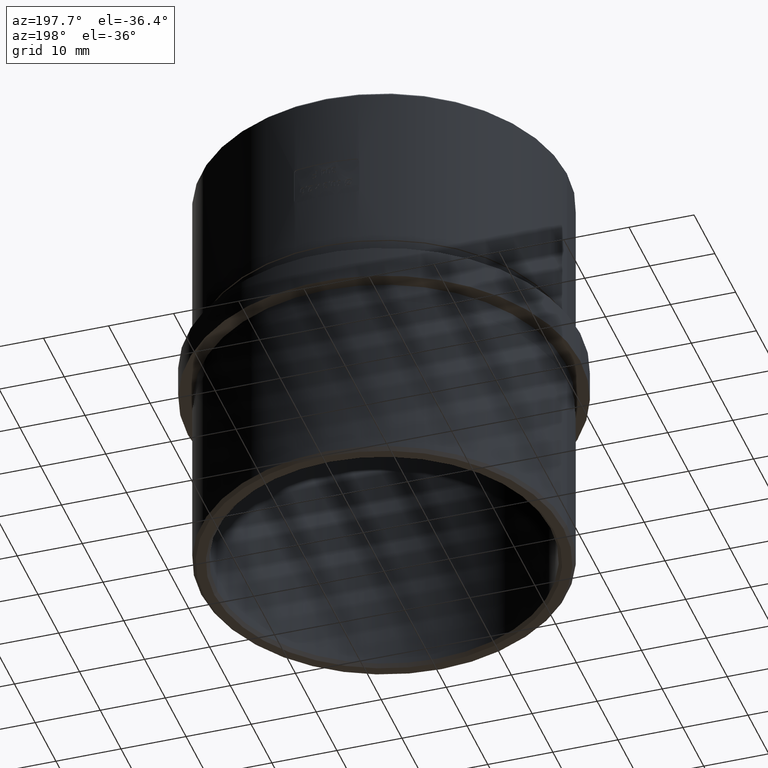
[diagram: clean part render]
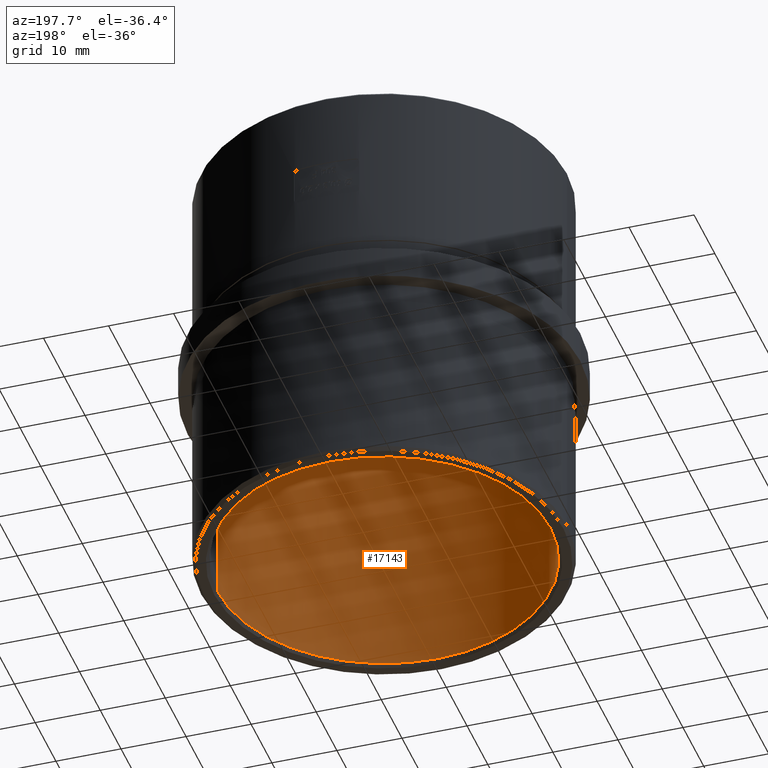
[diagram: same view with one face highlighted and labeled with its STEP entity id]
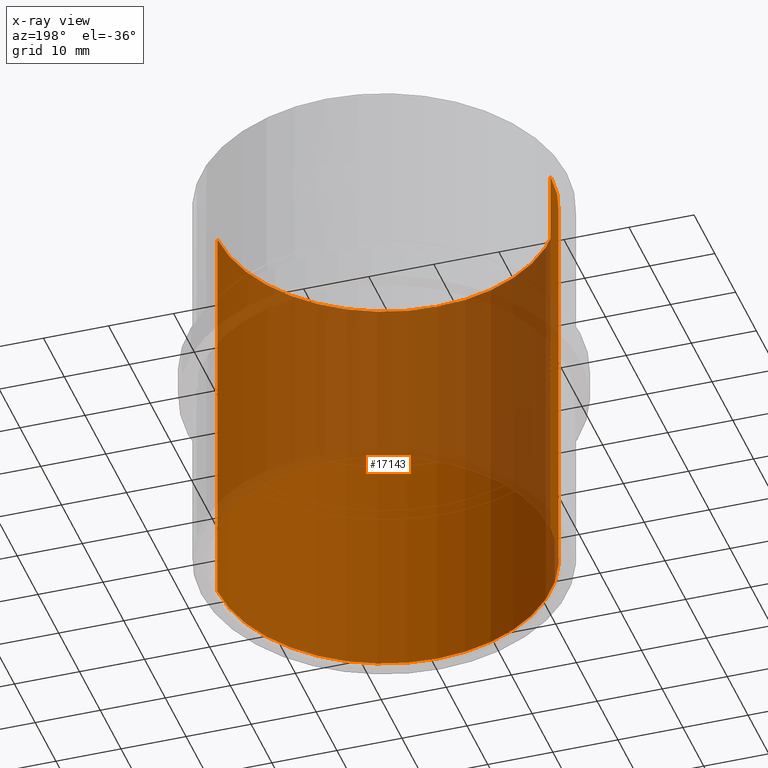
[diagram: x-ray of the same camera — body ghosted, the highlighted face saturated]
A machine part, auxiliary view. The second image highlights one B-rep face of the part: STEP entity #17143.
The next image is the same camera in x-ray: the body ghosted, the highlighted face saturated — about 51% of this face is hidden behind the body in this view.
In plain terms, the highlighted cylindrical surface (partial cylindrical patch) has radius 25.6 mm, axis along (-0, -0, 1).
Its self-contained STEP definition (entity closure, byte-faithful):
#1 = VERTEX_POINT ( 'NONE', #4099 ) ;
#63 = CARTESIAN_POINT ( 'NONE',  ( 25.60000000000000100, 0.0000000000000000000, 0.0000000000000000000 ) ) ;
#76 = VECTOR ( 'NONE', #12829, 1000.000000000000000 ) ;
#85 = EDGE_CURVE ( 'NONE', #13048, #3799, #10429, .T. ) ;
#141 = CARTESIAN_POINT ( 'NONE',  ( 25.60000000000000100, 0.0000000000000000000, -31.99999999999998600 ) ) ;
#301 = CARTESIAN_POINT ( 'NONE',  ( -25.59997876925097100, -0.03298322617123955500, -2.803659879995309200 ) ) ;
#328 = VECTOR ( 'NONE', #9872, 1000.000000000000000 ) ;
#340 = VECTOR ( 'NONE', #2253, 1000.000000000000000 ) ;
#369 = CARTESIAN_POINT ( 'NONE',  ( -25.60000000000000100, 3.135095805817224400E-015, 0.0000000000000000000 ) ) ;
#376 = LINE ( 'NONE', #12094, #6614 ) ;
#383 = DIRECTION ( 'NONE',  ( -0.0000000000000000000, -0.0000000000000000000, 1.000000000000000000 ) ) ;
#481 = EDGE_CURVE ( 'NONE', #9756, #6481, #1610, .T. ) ;
#584 = EDGE_CURVE ( 'NONE', #4494, #11397, #6384, .T. ) ;
#585 = LINE ( 'NONE', #1608, #7325 ) ;
#733 = AXIS2_PLACEMENT_3D ( 'NONE', #4233, #19344, #19265 ) ;
#755 = CARTESIAN_POINT ( 'NONE',  ( -25.60000000000000100, -1.185406834908324800E-017, 0.0000000000000000000 ) ) ;
#766 = ORIENTED_EDGE ( 'NONE', *, *, #11993, .F. ) ;
#812 = CARTESIAN_POINT ( 'NONE',  ( -25.60000000000000100, 3.135095805817224400E-015, 0.0000000000000000000 ) ) ;
#971 = CARTESIAN_POINT ( 'NONE',  ( -25.60000000000000100, -1.142880346631470200E-017, 0.0000000000000000000 ) ) ;
#997 = CARTESIAN_POINT ( 'NONE',  ( -25.59997752674439300, -0.03392094017094018200, -4.894420656383544200 ) ) ;
#1040 = ORIENTED_EDGE ( 'NONE', *, *, #14594, .F. ) ;
#1064 = VECTOR ( 'NONE', #17656, 1000.000000000000000 ) ;
#1118 = EDGE_CURVE ( 'NONE', #12737, #6722, #21166, .T. ) ;
#1158 = CARTESIAN_POINT ( 'NONE',  ( -25.60000000000000100, 3.135095805817224400E-015, 0.0000000000000000000 ) ) ;
#1179 = VERTEX_POINT ( 'NONE', #4955 ) ;
#1253 = CARTESIAN_POINT ( 'NONE',  ( -25.60000000000000100, -9.682640084037789900E-018, 6.775707799145304300 ) ) ;
#1265 = CARTESIAN_POINT ( 'NONE',  ( -25.59999999999999800, -4.166538126884958300E-013, -8.397296406759272400 ) ) ;
#1304 = DIRECTION ( 'NONE',  ( 0.0000000000000000000, 0.0000000000000000000, -1.000000000000000000 ) ) ;
#1321 = B_SPLINE_CURVE_WITH_KNOTS ( 'NONE', 3,
 ( #16476, #14777, #13328, #4900 ),
 .UNSPECIFIED., .F., .F.,
 ( 4, 4 ),
 ( 0.0000000000000000000, 0.0001651754960804326100 ),
 .UNSPECIFIED. ) ;
#1347 = LINE ( 'NONE', #17585, #9124 ) ;
#1415 = VERTEX_POINT ( 'NONE', #4363 ) ;
#1499 = VECTOR ( 'NONE', #12428, 1000.000000000000000 ) ;
#1517 = CARTESIAN_POINT ( 'NONE',  ( -25.59997752674439300, -0.03392094017094018200, -3.903028178418797500 ) ) ;
#1541 = CARTESIAN_POINT ( 'NONE',  ( -25.59999999999999100, -2.914814013256234100E-013, 5.896279188368306600 ) ) ;
#1608 = CARTESIAN_POINT ( 'NONE',  ( -25.60000000000000100, 3.135095805817224400E-015, 0.0000000000000000000 ) ) ;
#1610 = LINE ( 'NONE', #6162, #13828 ) ;
#1638 = CARTESIAN_POINT ( 'NONE',  ( -25.60000000000000100, -1.142880346631470200E-017, 1.433159722222228800 ) ) ;
#1723 = VERTEX_POINT ( 'NONE', #8603 ) ;
#1825 = ORIENTED_EDGE ( 'NONE', *, *, #6429, .F. ) ;
#1841 = LINE ( 'NONE', #369, #2605 ) ;
#1848 = EDGE_CURVE ( 'NONE', #7158, #8515, #17993, .T. ) ;
#1885 = VECTOR ( 'NONE', #2393, 1000.000000000000000 ) ;
#2064 = LINE ( 'NONE', #18703, #18734 ) ;
#2142 = CARTESIAN_POINT ( 'NONE',  ( -25.59999999999999800, -3.167774050206627000E-013, -3.020587320501871600 ) ) ;
#2145 = DIRECTION ( 'NONE',  ( -0.0000000000000000000, -0.0000000000000000000, 1.000000000000000000 ) ) ;
#2147 = VECTOR ( 'NONE', #11368, 1000.000000000000000 ) ;
#2161 = CARTESIAN_POINT ( 'NONE',  ( -25.60000000000000500, -2.914625548425470500E-013, 2.928196923411044300 ) ) ;
#2217 = CARTESIAN_POINT ( 'NONE',  ( -25.59999999999999800, -9.631294005873428800E-015, -0.9890523481114584800 ) ) ;
#2252 = CARTESIAN_POINT ( 'NONE',  ( -25.60000000000000100, -9.824395044960635000E-018, 0.0000000000000000000 ) ) ;
#2253 = DIRECTION ( 'NONE',  ( -0.0000000000000000000, -0.0000000000000000000, 1.000000000000000000 ) ) ;
#2271 = CARTESIAN_POINT ( 'NONE',  ( -25.60000000000001200, -0.01137892802154374100, 6.125216935366848000 ) ) ;
#2348 = CARTESIAN_POINT ( 'NONE',  ( -25.60000000000000500, -0.02359443812523335700, -0.9294877716558851400 ) ) ;
#2351 = VERTEX_POINT ( 'NONE', #6669 ) ;
#2356 = LINE ( 'NONE', #16176, #20630 ) ;
#2393 = DIRECTION ( 'NONE',  ( 0.0000000000000000000, 0.0000000000000000000, -1.000000000000000000 ) ) ;
#2420 = CARTESIAN_POINT ( 'NONE',  ( -25.60000000000000100, 3.092305532188637000E-015, -0.6345703059182364900 ) ) ;
#2446 = CARTESIAN_POINT ( 'NONE',  ( -25.59999438168794600, -0.01696047008547009500, 3.066134982638891900 ) ) ;
#2508 = CARTESIAN_POINT ( 'NONE',  ( -25.60000000000000100, 3.135095805817224400E-015, 0.0000000000000000000 ) ) ;
#2536 = CARTESIAN_POINT ( 'NONE',  ( -25.59999999999999100, -8.062059591966430600E-015, -4.071694404207385700 ) ) ;
#2567 = ORIENTED_EDGE ( 'NONE', *, *, #5468, .T. ) ;
#2583 = DIRECTION ( 'NONE',  ( -0.0000000000000000000, -0.0000000000000000000, 1.000000000000000000 ) ) ;
#2605 = VECTOR ( 'NONE', #6910, 1000.000000000000000 ) ;
#2639 = CARTESIAN_POINT ( 'NONE',  ( -25.60000000000000100, -0.01131678626489462600, -3.763982072769923800 ) ) ;
#2659 = VECTOR ( 'NONE', #3267, 1000.000000000000000 ) ;
#2749 = CARTESIAN_POINT ( 'NONE',  ( -25.60000000000000100, 3.135095805817224400E-015, 0.0000000000000000000 ) ) ;
#2783 = B_SPLINE_CURVE_WITH_KNOTS ( 'NONE', 3,
 ( #21527, #11506, #9973, #1541 ),
 .UNSPECIFIED., .F., .F.,
 ( 4, 4 ),
 ( 0.0000000000000000000, 0.0001390969608058355100 ),
 .UNSPECIFIED. ) ;
#2788 = EDGE_CURVE ( 'NONE', #1179, #17491, #12172, .T. ) ;
#2805 = AXIS2_PLACEMENT_3D ( 'NONE', #13209, #3269, #9937 ) ;
#2868 = ORIENTED_EDGE ( 'NONE', *, *, #13446, .F. ) ;
#2900 = VERTEX_POINT ( 'NONE', #4081 ) ;
#2945 = EDGE_CURVE ( 'NONE', #13048, #6722, #20311, .T. ) ;
#3057 = EDGE_CURVE ( 'NONE', #7367, #21152, #13203, .T. ) ;
#3098 = CARTESIAN_POINT ( 'NONE',  ( -25.60000000000000100, 3.135095805817224400E-015, -31.99999999999998600 ) ) ;
#3210 = CARTESIAN_POINT ( 'NONE',  ( -25.60000000000000100, -1.185406834908324800E-017, 1.161792200854704600 ) ) ;
#3219 = VECTOR ( 'NONE', #15283, 1000.000000000000000 ) ;
#3267 = DIRECTION ( 'NONE',  ( -0.0000000000000000000, -0.0000000000000000000, 1.000000000000000000 ) ) ;
#3269 = DIRECTION ( 'NONE',  ( -0.0000000000000000000, -0.0000000000000000000, -1.000000000000000000 ) ) ;
#3324 = CARTESIAN_POINT ( 'NONE',  ( -25.60000000000000100, -1.030120718624658400E-017, 3.807625534188036700 ) ) ;
#3355 = EDGE_CURVE ( 'NONE', #8515, #17442, #8397, .T. ) ;
#3382 = CARTESIAN_POINT ( 'NONE',  ( -25.60000000000000100, -1.185406834908324800E-017, 0.3137686965812003200 ) ) ;
#3408 = LINE ( 'NONE', #16188, #10404 ) ;
#3612 = CARTESIAN_POINT ( 'NONE',  ( -25.59999999999999800, -3.165753876627425500E-013, -8.719305269219821900 ) ) ;
#3664 = EDGE_CURVE ( 'NONE', #20874, #3799, #11380, .T. ) ;
#3674 = VERTEX_POINT ( 'NONE', #3704 ) ;
#3691 = VECTOR ( 'NONE', #18068, 1000.000000000000000 ) ;
#3704 = CARTESIAN_POINT ( 'NONE',  ( -25.60000000000000100, -1.502422474790332800E-017, -7.725494123931619900 ) ) ;
#3742 = CARTESIAN_POINT ( 'NONE',  ( -25.60000000000000100, -1.142880346631470200E-017, 1.551883012820519400 ) ) ;
#3793 = DIRECTION ( 'NONE',  ( -0.0000000000000000000, -0.0000000000000000000, 1.000000000000000000 ) ) ;
#3799 = VERTEX_POINT ( 'NONE', #19977 ) ;
#3853 = B_SPLINE_CURVE_WITH_KNOTS ( 'NONE', 3,
 ( #13705, #20216, #13554, #2142 ),
 .UNSPECIFIED., .F., .F.,
 ( 4, 4 ),
 ( 0.0000000000000000000, 0.0001651754960804336700 ),
 .UNSPECIFIED. ) ;
#3854 = VERTEX_POINT ( 'NONE', #5105 ) ;
#3855 = LINE ( 'NONE', #2749, #11648 ) ;
#3903 = CARTESIAN_POINT ( 'NONE',  ( -25.59999509928368200, -0.01587733696674214700, 3.019651408515239900 ) ) ;
#3990 = EDGE_CURVE ( 'NONE', #12822, #19570, #18436, .T. ) ;
#3993 = VERTEX_POINT ( 'NONE', #10191 ) ;
#4013 = CARTESIAN_POINT ( 'NONE',  ( -25.60000000000000100, 3.121739927105723900E-015, 6.168681701909323900 ) ) ;
#4036 = VECTOR ( 'NONE', #18233, 1000.000000000000000 ) ;
#4081 = CARTESIAN_POINT ( 'NONE',  ( 25.60000000000000100, 0.0000000000000000000, 32.00000000000002800 ) ) ;
#4094 = CARTESIAN_POINT ( 'NONE',  ( -25.60000000000000100, 3.121739927105723900E-015, 6.168681701909323900 ) ) ;
#4099 = CARTESIAN_POINT ( 'NONE',  ( -25.60000000000000100, -9.682640084037789900E-018, 6.894431089743594800 ) ) ;
#4146 = CARTESIAN_POINT ( 'NONE',  ( -25.60000000000000100, -8.896544391647445800E-018, 8.794003739316238500 ) ) ;
#4182 = ORIENTED_EDGE ( 'NONE', *, *, #17750, .T. ) ;
#4229 = B_SPLINE_CURVE_WITH_KNOTS ( 'NONE', 3,
 ( #16628, #13261, #13416, #8463 ),
 .UNSPECIFIED., .F., .F.,
 ( 4, 4 ),
 ( 0.0004303358039483146100, 0.0006014468130668882900 ),
 .UNSPECIFIED. ) ;
#4233 = CARTESIAN_POINT ( 'NONE',  ( 0.0000000000000000000, 0.0000000000000000000, 32.00000000000002800 ) ) ;
#4250 = ORIENTED_EDGE ( 'NONE', *, *, #3355, .F. ) ;
#4259 = ORIENTED_EDGE ( 'NONE', *, *, #18580, .T. ) ;
#4274 = CARTESIAN_POINT ( 'NONE',  ( -25.60000000000000100, 3.135095805817224400E-015, 0.0000000000000000000 ) ) ;
#4363 = CARTESIAN_POINT ( 'NONE',  ( -25.59999999999999800, -4.163700566511656400E-013, -2.698578458041321200 ) ) ;
#4494 = VERTEX_POINT ( 'NONE', #19625 ) ;
#4507 = LINE ( 'NONE', #2252, #13084 ) ;
#4529 = VERTEX_POINT ( 'NONE', #3098 ) ;
#4626 = CARTESIAN_POINT ( 'NONE',  ( -25.60000000000000100, -1.502422474790332800E-017, 0.0000000000000000000 ) ) ;
#4691 = CARTESIAN_POINT ( 'NONE',  ( -25.60000000000000100, 4.188430341916345900E-012, 7.468995267312504200 ) ) ;
#4739 = CARTESIAN_POINT ( 'NONE',  ( -25.59999999999999100, -2.914814013256234100E-013, 5.896279188368306600 ) ) ;
#4743 = LINE ( 'NONE', #8258, #5781 ) ;
#4779 = EDGE_CURVE ( 'NONE', #7158, #14792, #7346, .T. ) ;
#4840 = DIRECTION ( 'NONE',  ( -0.0000000000000000000, -0.0000000000000000000, 1.000000000000000000 ) ) ;
#4900 = CARTESIAN_POINT ( 'NONE',  ( -25.60000000000000500, -3.170696313874654300E-013, -2.002959115373664100 ) ) ;
#4953 = ORIENTED_EDGE ( 'NONE', *, *, #1848, .F. ) ;
#4955 = CARTESIAN_POINT ( 'NONE',  ( -25.60000000000000100, -1.030120718624658400E-017, 4.587807158119661100 ) ) ;
#4968 = VECTOR ( 'NONE', #16587, 1000.000000000000000 ) ;
#4995 = EDGE_CURVE ( 'NONE', #3854, #12188, #1321, .T. ) ;
#5021 = EDGE_CURVE ( 'NONE', #9874, #17844, #21379, .T. ) ;
#5030 = VERTEX_POINT ( 'NONE', #16619 ) ;
#5099 = CARTESIAN_POINT ( 'NONE',  ( -25.59999438168794600, -0.01696047008547009500, 6.034217247596156000 ) ) ;
#5105 = CARTESIAN_POINT ( 'NONE',  ( -25.59997752674439300, -0.03392094017094018200, -1.841536040998927600 ) ) ;
#5144 = EDGE_CURVE ( 'NONE', #16798, #2351, #10909, .T. ) ;
#5193 = CARTESIAN_POINT ( 'NONE',  ( -25.60000000000000100, -1.142880346631470200E-017, 2.162459935897442300 ) ) ;
#5348 = EDGE_CURVE ( 'NONE', #1723, #17442, #16204, .T. ) ;
#5466 = CIRCLE ( 'NONE', #733, 25.60000000000000100 ) ;
#5468 = EDGE_CURVE ( 'NONE', #16817, #4529, #11748, .T. ) ;
#5766 = ORIENTED_EDGE ( 'NONE', *, *, #3990, .F. ) ;
#5781 = VECTOR ( 'NONE', #9999, 1000.000000000000000 ) ;
#5873 = VERTEX_POINT ( 'NONE', #4739 ) ;
#5928 = EDGE_CURVE ( 'NONE', #7160, #5873, #585, .T. ) ;
#5988 = LINE ( 'NONE', #13467, #8586 ) ;
#6099 = ORIENTED_EDGE ( 'NONE', *, *, #11628, .T. ) ;
#6104 = DIRECTION ( 'NONE',  ( 0.0000000000000000000, 0.0000000000000000000, -1.000000000000000000 ) ) ;
#6119 = LINE ( 'NONE', #8720, #10257 ) ;
#6151 = EDGE_CURVE ( 'NONE', #9874, #15274, #10956, .T. ) ;
#6162 = CARTESIAN_POINT ( 'NONE',  ( -25.60000000000000100, 3.135095805817224400E-015, 0.0000000000000000000 ) ) ;
#6222 = ORIENTED_EDGE ( 'NONE', *, *, #584, .F. ) ;
#6306 = EDGE_CURVE ( 'NONE', #17844, #6481, #19467, .T. ) ;
#6328 = CARTESIAN_POINT ( 'NONE',  ( -25.60000000000000100, -0.02272571064962908300, -4.018314340152365100 ) ) ;
#6384 = B_SPLINE_CURVE_WITH_KNOTS ( 'NONE', 3,
 ( #21330, #17942, #16498, #8026 ),
 .UNSPECIFIED., .F., .F.,
 ( 4, 4 ),
 ( 0.0000000000000000000, 0.0001651754960804328000 ),
 .UNSPECIFIED. ) ;
#6429 = EDGE_CURVE ( 'NONE', #9756, #7210, #18787, .T. ) ;
#6481 = VERTEX_POINT ( 'NONE', #12678 ) ;
#6515 = LINE ( 'NONE', #1158, #12995 ) ;
#6518 = ORIENTED_EDGE ( 'NONE', *, *, #7976, .F. ) ;
#6550 = VERTEX_POINT ( 'NONE', #4691 ) ;
#6588 = CARTESIAN_POINT ( 'NONE',  ( -25.59999999999999100, 3.150221409957149400E-015, 3.200599436952058500 ) ) ;
#6604 = DIRECTION ( 'NONE',  ( 0.0000000000000000000, 0.0000000000000000000, -1.000000000000000000 ) ) ;
#6614 = VECTOR ( 'NONE', #2145, 1000.000000000000000 ) ;
#6635 = CARTESIAN_POINT ( 'NONE',  ( -25.59998027913084300, -0.03184372677752521400, -3.960967345668217300 ) ) ;
#6644 = ORIENTED_EDGE ( 'NONE', *, *, #17608, .T. ) ;
#6669 = CARTESIAN_POINT ( 'NONE',  ( -25.59999438168794600, -0.01696047008547009500, 7.612335987580130400 ) ) ;
#6722 = VERTEX_POINT ( 'NONE', #1638 ) ;
#6734 = VERTEX_POINT ( 'NONE', #3382 ) ;
#6737 = ORIENTED_EDGE ( 'NONE', *, *, #16888, .F. ) ;
#6853 = LINE ( 'NONE', #4274, #2147 ) ;
#6887 = VERTEX_POINT ( 'NONE', #2420 ) ;
#6910 = DIRECTION ( 'NONE',  ( -0.0000000000000000000, -0.0000000000000000000, 1.000000000000000000 ) ) ;
#6941 = EDGE_LOOP ( 'NONE', ( #2567, #18450, #6737, #9348, #10873, #16025, #13482, #15592, #10569, #6222, #17743, #9284, #4250, #4953, #10843, #6518, #19512, #8531, #8452, #12643, #19538, #2868, #14288, #15084, #16269, #19939, #19968, #11975, #16311, #4259, #17841, #11580, #1825, #13181, #15254, #7107, #20777, #21556, #8940, #10212, #20812, #19238, #6099, #7129, #12152, #20605, #5766, #19682, #14862, #12778, #1040, #20110, #4182, #12756, #6644, #14160, #766 ) ) ;
#6988 = CARTESIAN_POINT ( 'NONE',  ( -25.60000000000000500, -3.170696313874654300E-013, -2.002959115373664100 ) ) ;
#7107 = ORIENTED_EDGE ( 'NONE', *, *, #5021, .F. ) ;
#7129 = ORIENTED_EDGE ( 'NONE', *, *, #16081, .F. ) ;
#7158 = VERTEX_POINT ( 'NONE', #16643 ) ;
#7160 = VERTEX_POINT ( 'NONE', #18689 ) ;
#7168 = CARTESIAN_POINT ( 'NONE',  ( -25.59997752674439300, -0.03392094017094018200, -8.557882194845083400 ) ) ;
#7210 = VERTEX_POINT ( 'NONE', #13496 ) ;
#7325 = VECTOR ( 'NONE', #13229, 1000.000000000000000 ) ;
#7346 = LINE ( 'NONE', #7445, #18320 ) ;
#7367 = VERTEX_POINT ( 'NONE', #18156 ) ;
#7381 = EDGE_CURVE ( 'NONE', #13408, #21037, #2356, .T. ) ;
#7445 = CARTESIAN_POINT ( 'NONE',  ( -25.60000000000000100, 3.135095805817224400E-015, 0.0000000000000000000 ) ) ;
#7447 = DIRECTION ( 'NONE',  ( 0.0000000000000000000, 0.0000000000000000000, -1.000000000000000000 ) ) ;
#7453 = CARTESIAN_POINT ( 'NONE',  ( -25.60000000000000100, -1.095199132502875800E-017, 0.0000000000000000000 ) ) ;
#7476 = CARTESIAN_POINT ( 'NONE',  ( 0.0000000000000000000, 0.0000000000000000000, 0.0000000000000000000 ) ) ;
#7565 = LINE ( 'NONE', #20244, #4968 ) ;
#7660 = DIRECTION ( 'NONE',  ( -0.0000000000000000000, -0.0000000000000000000, 1.000000000000000000 ) ) ;
#7976 = EDGE_CURVE ( 'NONE', #21463, #14792, #3853, .T. ) ;
#8026 = CARTESIAN_POINT ( 'NONE',  ( -25.60000000000000500, -3.171464996274287600E-013, -5.055843730758280000 ) ) ;
#8066 = CARTESIAN_POINT ( 'NONE',  ( -25.59997752674439300, -0.03392094017094018200, -3.903028178418797500 ) ) ;
#8149 = LINE ( 'NONE', #20098, #3219 ) ;
#8196 = CARTESIAN_POINT ( 'NONE',  ( -25.60000000000000100, 3.135095805817224400E-015, 0.0000000000000000000 ) ) ;
#8258 = CARTESIAN_POINT ( 'NONE',  ( -25.60000000000000100, 3.135095805817224400E-015, 0.0000000000000000000 ) ) ;
#8277 = CARTESIAN_POINT ( 'NONE',  ( -25.59997752674439300, -0.03392094017094018200, -2.859164246127134500 ) ) ;
#8397 = B_SPLINE_CURVE_WITH_KNOTS ( 'NONE', 3,
 ( #1517, #6635, #6328, #20018 ),
 .UNSPECIFIED., .F., .F.,
 ( 4, 4 ),
 ( 0.0000000000000000000, 0.0001721198656553841600 ),
 .UNSPECIFIED. ) ;
#8403 = EDGE_CURVE ( 'NONE', #14679, #16882, #3855, .T. ) ;
#8452 = ORIENTED_EDGE ( 'NONE', *, *, #4995, .F. ) ;
#8463 = CARTESIAN_POINT ( 'NONE',  ( -25.59997752674439300, -0.03392094017094018200, -0.8021772335737118500 ) ) ;
#8515 = VERTEX_POINT ( 'NONE', #11091 ) ;
#8531 = ORIENTED_EDGE ( 'NONE', *, *, #13337, .T. ) ;
#8586 = VECTOR ( 'NONE', #12004, 1000.000000000000000 ) ;
#8603 = CARTESIAN_POINT ( 'NONE',  ( -25.59999999999999800, -4.166057435687391500E-013, -4.733834868297731400 ) ) ;
#8720 = CARTESIAN_POINT ( 'NONE',  ( -25.60000000000000100, 3.135095805817224400E-015, 0.0000000000000000000 ) ) ;
#8734 = CARTESIAN_POINT ( 'NONE',  ( -25.59997876925097100, -0.03298322617123954100, -1.786031674867103500 ) ) ;
#8842 = EDGE_CURVE ( 'NONE', #3674, #21152, #13312, .T. ) ;
#8871 = VECTOR ( 'NONE', #1304, 1000.000000000000000 ) ;
#8929 = DIRECTION ( 'NONE',  ( -0.0000000000000000000, -0.0000000000000000000, 1.000000000000000000 ) ) ;
#8940 = ORIENTED_EDGE ( 'NONE', *, *, #8403, .T. ) ;
#9124 = VECTOR ( 'NONE', #7447, 1000.000000000000000 ) ;
#9174 = LINE ( 'NONE', #9840, #19896 ) ;
#9206 = EDGE_CURVE ( 'NONE', #19570, #5873, #2783, .T. ) ;
#9284 = ORIENTED_EDGE ( 'NONE', *, *, #5348, .T. ) ;
#9348 = ORIENTED_EDGE ( 'NONE', *, *, #18598, .F. ) ;
#9435 = AXIS2_PLACEMENT_3D ( 'NONE', #7476, #19190, #10872 ) ;
#9583 = EDGE_CURVE ( 'NONE', #20874, #6734, #7565, .T. ) ;
#9585 = EDGE_CURVE ( 'NONE', #1415, #21463, #13454, .T. ) ;
#9676 = CARTESIAN_POINT ( 'NONE',  ( -25.59999999999999800, -3.167774050206627000E-013, -3.020587320501871600 ) ) ;
#9688 = CARTESIAN_POINT ( 'NONE',  ( -25.59997752674439300, -0.03392094017094018200, -8.557882194845083400 ) ) ;
#9756 = VERTEX_POINT ( 'NONE', #16912 ) ;
#9840 = CARTESIAN_POINT ( 'NONE',  ( -25.60000000000000100, -9.682640084037789900E-018, 0.0000000000000000000 ) ) ;
#9872 = DIRECTION ( 'NONE',  ( -0.0000000000000000000, -0.0000000000000000000, 1.000000000000000000 ) ) ;
#9874 = VERTEX_POINT ( 'NONE', #20197 ) ;
#9937 = DIRECTION ( 'NONE',  ( -1.000000000000000000, 0.0000000000000000000, 0.0000000000000000000 ) ) ;
#9973 = CARTESIAN_POINT ( 'NONE',  ( -25.59999999999999800, -0.01155147915392332200, 5.941142858657486600 ) ) ;
#9989 = CARTESIAN_POINT ( 'NONE',  ( -25.59999999999999800, -9.631294005873428800E-015, -0.9890523481114584800 ) ) ;
#9999 = DIRECTION ( 'NONE',  ( -0.0000000000000000000, -0.0000000000000000000, 1.000000000000000000 ) ) ;
#10165 = CARTESIAN_POINT ( 'NONE',  ( -25.60000000000000100, 3.135095805817224400E-015, 0.0000000000000000000 ) ) ;
#10190 = VECTOR ( 'NONE', #6104, 1000.000000000000000 ) ;
#10191 = CARTESIAN_POINT ( 'NONE',  ( -25.60000000000000100, -1.030120718624658400E-017, 5.249265491452994100 ) ) ;
#10212 = ORIENTED_EDGE ( 'NONE', *, *, #17576, .F. ) ;
#10229 = CARTESIAN_POINT ( 'NONE',  ( -25.59999999999999800, -4.163700566511656400E-013, -2.698578458041321200 ) ) ;
#10256 = CARTESIAN_POINT ( 'NONE',  ( -25.59999999999999800, -0.02317471676285799000, -1.730919118314395900 ) ) ;
#10257 = VECTOR ( 'NONE', #383, 1000.000000000000000 ) ;
#10309 = EDGE_CURVE ( 'NONE', #4529, #14670, #1841, .T. ) ;
#10337 = CARTESIAN_POINT ( 'NONE',  ( -25.59999999999999100, -0.02229529538924587500, -8.668526772113283500 ) ) ;
#10404 = VECTOR ( 'NONE', #2583, 1000.000000000000000 ) ;
#10429 = LINE ( 'NONE', #755, #14088 ) ;
#10441 = DIRECTION ( 'NONE',  ( 0.0000000000000000000, 0.0000000000000000000, -1.000000000000000000 ) ) ;
#10555 = VERTEX_POINT ( 'NONE', #1253 ) ;
#10569 = ORIENTED_EDGE ( 'NONE', *, *, #20753, .T. ) ;
#10843 = ORIENTED_EDGE ( 'NONE', *, *, #4779, .T. ) ;
#10851 = EDGE_CURVE ( 'NONE', #1723, #4494, #19999, .T. ) ;
#10858 = DIRECTION ( 'NONE',  ( -0.0000000000000000000, -0.0000000000000000000, 1.000000000000000000 ) ) ;
#10872 = DIRECTION ( 'NONE',  ( 1.000000000000000000, 0.0000000000000000000, 0.0000000000000000000 ) ) ;
#10873 = ORIENTED_EDGE ( 'NONE', *, *, #3057, .T. ) ;
#10874 = CARTESIAN_POINT ( 'NONE',  ( -25.60000000000000100, 3.135095805817224400E-015, 0.0000000000000000000 ) ) ;
#10909 = B_SPLINE_CURVE_WITH_KNOTS ( 'NONE', 3,
 ( #19438, #16602, #13081, #21364 ),
 .UNSPECIFIED., .F., .F.,
 ( 4, 4 ),
 ( 0.0006317717469774116100, 0.0007729019439772415300 ),
 .UNSPECIFIED. ) ;
#10956 = LINE ( 'NONE', #8196, #2659 ) ;
#10975 = CARTESIAN_POINT ( 'NONE',  ( -25.59997874926814300, -0.03299830712069024000, -3.874594197746824300 ) ) ;
#10991 = DIRECTION ( 'NONE',  ( 0.0000000000000000000, 0.0000000000000000000, -1.000000000000000000 ) ) ;
#11091 = CARTESIAN_POINT ( 'NONE',  ( -25.59997752674439300, -0.03392094017094018200, -3.903028178418797500 ) ) ;
#11094 = CARTESIAN_POINT ( 'NONE',  ( -25.60000000000000100, -9.824395044960635000E-018, 5.520633012820515400 ) ) ;
#11166 = VERTEX_POINT ( 'NONE', #13432 ) ;
#11199 = VECTOR ( 'NONE', #4840, 1000.000000000000000 ) ;
#11362 = CARTESIAN_POINT ( 'NONE',  ( -25.59997876925097100, -0.03298322617123955500, -8.502377828713260800 ) ) ;
#11368 = DIRECTION ( 'NONE',  ( -0.0000000000000000000, -0.0000000000000000000, 1.000000000000000000 ) ) ;
#11380 = LINE ( 'NONE', #11898, #17921 ) ;
#11397 = VERTEX_POINT ( 'NONE', #14241 ) ;
#11506 = CARTESIAN_POINT ( 'NONE',  ( -25.59999509928368200, -0.01587733696674217100, 5.987733673472503100 ) ) ;
#11564 = CARTESIAN_POINT ( 'NONE',  ( -25.60000000000000100, 3.135095805817224400E-015, 32.00000000000002800 ) ) ;
#11580 = ORIENTED_EDGE ( 'NONE', *, *, #19525, .T. ) ;
#11628 = EDGE_CURVE ( 'NONE', #3993, #17186, #6119, .T. ) ;
#11648 = VECTOR ( 'NONE', #16071, 1000.000000000000000 ) ;
#11748 = CIRCLE ( 'NONE', #2805, 25.60000000000000100 ) ;
#11760 = LINE ( 'NONE', #971, #10190 ) ;
#11898 = CARTESIAN_POINT ( 'NONE',  ( -25.60000000000000100, 3.135095805817224400E-015, 0.0000000000000000000 ) ) ;
#11951 = CARTESIAN_POINT ( 'NONE',  ( -25.59997860129705700, -0.03310998021971359200, -8.613591521130763000 ) ) ;
#11975 = ORIENTED_EDGE ( 'NONE', *, *, #2945, .T. ) ;
#11985 = CARTESIAN_POINT ( 'NONE',  ( -25.59999999999998400, -0.02317471676285840600, -4.783803733699009800 ) ) ;
#11993 = EDGE_CURVE ( 'NONE', #16817, #2900, #20200, .T. ) ;
#12004 = DIRECTION ( 'NONE',  ( -0.0000000000000000000, -0.0000000000000000000, 1.000000000000000000 ) ) ;
#12011 = FACE_OUTER_BOUND ( 'NONE', #6941, .T. ) ;
#12085 = B_SPLINE_CURVE_WITH_KNOTS ( 'NONE', 3,
 ( #14049, #15821, #17653, #17511 ),
 .UNSPECIFIED., .F., .F.,
 ( 4, 4 ),
 ( 0.0000000000000000000, 0.0001442359146550020900 ),
 .UNSPECIFIED. ) ;
#12090 = CARTESIAN_POINT ( 'NONE',  ( -25.60000000000000100, -1.502422474790332800E-017, -7.844217414529909500 ) ) ;
#12094 = CARTESIAN_POINT ( 'NONE',  ( -25.60000000000000100, 3.135095805817224400E-015, 0.0000000000000000000 ) ) ;
#12152 = ORIENTED_EDGE ( 'NONE', *, *, #5928, .T. ) ;
#12172 = LINE ( 'NONE', #17251, #21607 ) ;
#12188 = VERTEX_POINT ( 'NONE', #6988 ) ;
#12365 = DIRECTION ( 'NONE',  ( 0.0000000000000000000, 0.0000000000000000000, -1.000000000000000000 ) ) ;
#12387 = DIRECTION ( 'NONE',  ( -0.0000000000000000000, -0.0000000000000000000, 1.000000000000000000 ) ) ;
#12428 = DIRECTION ( 'NONE',  ( -0.0000000000000000000, -0.0000000000000000000, 1.000000000000000000 ) ) ;
#12591 = VERTEX_POINT ( 'NONE', #18449 ) ;
#12643 = ORIENTED_EDGE ( 'NONE', *, *, #12685, .F. ) ;
#12678 = CARTESIAN_POINT ( 'NONE',  ( -25.60000000000000500, -2.914625548425470500E-013, 2.928196923411044300 ) ) ;
#12685 = EDGE_CURVE ( 'NONE', #13408, #3854, #19719, .T. ) ;
#12728 = CARTESIAN_POINT ( 'NONE',  ( -25.60000000000001200, 3.144186300207963300E-015, -3.738063912259005100 ) ) ;
#12737 = VERTEX_POINT ( 'NONE', #3742 ) ;
#12756 = ORIENTED_EDGE ( 'NONE', *, *, #17331, .F. ) ;
#12778 = ORIENTED_EDGE ( 'NONE', *, *, #16700, .T. ) ;
#12803 = CARTESIAN_POINT ( 'NONE',  ( -25.60000000000000100, -8.896544391647445800E-018, 8.912727029914528000 ) ) ;
#12822 = VERTEX_POINT ( 'NONE', #4013 ) ;
#12829 = DIRECTION ( 'NONE',  ( 0.0000000000000000000, 0.0000000000000000000, -1.000000000000000000 ) ) ;
#12995 = VECTOR ( 'NONE', #21346, 1000.000000000000000 ) ;
#13026 = CARTESIAN_POINT ( 'NONE',  ( -25.59999519765872100, -0.01572885052944082400, 3.111496196884584900 ) ) ;
#13048 = VERTEX_POINT ( 'NONE', #3210 ) ;
#13081 = CARTESIAN_POINT ( 'NONE',  ( -25.59999511753400000, -0.01584979009150259300, 7.659914600810039600 ) ) ;
#13084 = VECTOR ( 'NONE', #10441, 1000.000000000000000 ) ;
#13181 = ORIENTED_EDGE ( 'NONE', *, *, #481, .T. ) ;
#13203 = LINE ( 'NONE', #812, #1499 ) ;
#13209 = CARTESIAN_POINT ( 'NONE',  ( 0.0000000000000000000, 0.0000000000000000000, -31.99999999999998600 ) ) ;
#13229 = DIRECTION ( 'NONE',  ( -0.0000000000000000000, -0.0000000000000000000, 1.000000000000000000 ) ) ;
#13261 = CARTESIAN_POINT ( 'NONE',  ( -25.60000000000000500, -0.02336592125925693700, -0.6867549312188268000 ) ) ;
#13270 = EDGE_CURVE ( 'NONE', #1, #10555, #9174, .T. ) ;
#13312 = LINE ( 'NONE', #4626, #76 ) ;
#13326 = LINE ( 'NONE', #20887, #13842 ) ;
#13328 = CARTESIAN_POINT ( 'NONE',  ( -25.60000000000000100, -0.02229529538924783500, -1.952180618267130000 ) ) ;
#13337 = EDGE_CURVE ( 'NONE', #1415, #12188, #376, .T. ) ;
#13408 = VERTEX_POINT ( 'NONE', #19090 ) ;
#13416 = CARTESIAN_POINT ( 'NONE',  ( -25.59997903983506600, -0.03277901758212777000, -0.7445318585027895800 ) ) ;
#13432 = CARTESIAN_POINT ( 'NONE',  ( -25.60000000000000100, -1.463762030902283300E-017, -6.979233440170938600 ) ) ;
#13446 = EDGE_CURVE ( 'NONE', #12591, #21037, #16519, .T. ) ;
#13454 = B_SPLINE_CURVE_WITH_KNOTS ( 'NONE', 3,
 ( #10229, #15199, #301, #8277 ),
 .UNSPECIFIED., .F., .F.,
 ( 4, 4 ),
 ( 0.0007605110165723546600, 0.0009247696286514117200 ),
 .UNSPECIFIED. ) ;
#13467 = CARTESIAN_POINT ( 'NONE',  ( -25.60000000000000100, 3.135095805817224400E-015, 0.0000000000000000000 ) ) ;
#13478 = CARTESIAN_POINT ( 'NONE',  ( -25.59999438168794600, -0.01696047008547009500, 3.066134982638891900 ) ) ;
#13482 = ORIENTED_EDGE ( 'NONE', *, *, #17283, .T. ) ;
#13496 = CARTESIAN_POINT ( 'NONE',  ( -25.60000000000000100, -1.095199132502875800E-017, 2.552550747863251000 ) ) ;
#13554 = CARTESIAN_POINT ( 'NONE',  ( -25.60000000000000100, -0.02229529538924746400, -2.969808823395338100 ) ) ;
#13705 = CARTESIAN_POINT ( 'NONE',  ( -25.59997752674439300, -0.03392094017094018200, -2.859164246127134500 ) ) ;
#13753 = CARTESIAN_POINT ( 'NONE',  ( -25.59999519765870000, -0.01572885052944080300, 6.079578461841848900 ) ) ;
#13828 = VECTOR ( 'NONE', #10858, 1000.000000000000000 ) ;
#13838 = CARTESIAN_POINT ( 'NONE',  ( -25.60000000000000100, -1.030120718624658400E-017, 4.469083867521370700 ) ) ;
#13842 = VECTOR ( 'NONE', #10991, 1000.000000000000000 ) ;
#14049 = CARTESIAN_POINT ( 'NONE',  ( -25.59999438168794600, -0.01696047008547009500, 7.612335987580130400 ) ) ;
#14079 = LINE ( 'NONE', #2508, #17248 ) ;
#14088 = VECTOR ( 'NONE', #12365, 1000.000000000000000 ) ;
#14160 = ORIENTED_EDGE ( 'NONE', *, *, #19658, .T. ) ;
#14241 = CARTESIAN_POINT ( 'NONE',  ( -25.60000000000000500, -3.171464996274287600E-013, -5.055843730758280000 ) ) ;
#14288 = ORIENTED_EDGE ( 'NONE', *, *, #21003, .F. ) ;
#14322 = CARTESIAN_POINT ( 'NONE',  ( -25.60000000000000100, -1.142880346631470200E-017, 0.0000000000000000000 ) ) ;
#14451 = CARTESIAN_POINT ( 'NONE',  ( -25.60000000000000100, -1.030120718624658400E-017, 0.0000000000000000000 ) ) ;
#14594 = EDGE_CURVE ( 'NONE', #2351, #6550, #12085, .T. ) ;
#14604 = LINE ( 'NONE', #15279, #1885 ) ;
#14670 = VERTEX_POINT ( 'NONE', #19223 ) ;
#14679 = VERTEX_POINT ( 'NONE', #17928 ) ;
#14719 = CARTESIAN_POINT ( 'NONE',  ( -25.60000000000000100, -1.185406834908324800E-017, 0.4324919871794909400 ) ) ;
#14777 = CARTESIAN_POINT ( 'NONE',  ( -25.59997860129705700, -0.03310998021971380700, -1.897245367284607900 ) ) ;
#14792 = VERTEX_POINT ( 'NONE', #9676 ) ;
#14862 = ORIENTED_EDGE ( 'NONE', *, *, #13270, .F. ) ;
#15084 = ORIENTED_EDGE ( 'NONE', *, *, #15316, .T. ) ;
#15199 = CARTESIAN_POINT ( 'NONE',  ( -25.60000000000001200, -0.02317471676285906200, -2.748547323442601400 ) ) ;
#15214 = VERTEX_POINT ( 'NONE', #17883 ) ;
#15225 = CARTESIAN_POINT ( 'NONE',  ( -25.60000000000000500, -4.166192960958952200E-013, -1.680950252913115900 ) ) ;
#15254 = ORIENTED_EDGE ( 'NONE', *, *, #6306, .F. ) ;
#15274 = VERTEX_POINT ( 'NONE', #3324 ) ;
#15279 = CARTESIAN_POINT ( 'NONE',  ( -25.60000000000000100, -8.896544391647445800E-018, 0.0000000000000000000 ) ) ;
#15281 = CARTESIAN_POINT ( 'NONE',  ( -25.59999999999999800, -4.166057435687391500E-013, -4.733834868297731400 ) ) ;
#15283 = DIRECTION ( 'NONE',  ( 0.0000000000000000000, 0.0000000000000000000, -1.000000000000000000 ) ) ;
#15316 = EDGE_CURVE ( 'NONE', #6887, #6734, #4743, .T. ) ;
#15406 = LINE ( 'NONE', #14451, #8871 ) ;
#15464 = CARTESIAN_POINT ( 'NONE',  ( -25.60000000000000100, -1.030120718624658400E-017, 5.130542200854703700 ) ) ;
#15592 = ORIENTED_EDGE ( 'NONE', *, *, #15966, .F. ) ;
#15666 = LINE ( 'NONE', #10165, #328 ) ;
#15740 = CARTESIAN_POINT ( 'NONE',  ( -25.59997752674439300, -0.03392094017094018200, -0.8021772335737118500 ) ) ;
#15808 = VERTEX_POINT ( 'NONE', #11564 ) ;
#15814 = CARTESIAN_POINT ( 'NONE',  ( -25.59997829568597900, -0.03334062349442594400, -0.8662287063598481700 ) ) ;
#15821 = CARTESIAN_POINT ( 'NONE',  ( -25.59999503130521200, -0.01597994311337961500, 7.563821415340263400 ) ) ;
#15846 = VECTOR ( 'NONE', #21057, 1000.000000000000000 ) ;
#15956 = CARTESIAN_POINT ( 'NONE',  ( -25.59999290662914400, -0.01990387481824090800, -3.790728701654001700 ) ) ;
#15966 = EDGE_CURVE ( 'NONE', #20721, #11166, #8149, .T. ) ;
#16025 = ORIENTED_EDGE ( 'NONE', *, *, #8842, .F. ) ;
#16071 = DIRECTION ( 'NONE',  ( -0.0000000000000000000, -0.0000000000000000000, 1.000000000000000000 ) ) ;
#16081 = EDGE_CURVE ( 'NONE', #7160, #17186, #4507, .T. ) ;
#16176 = CARTESIAN_POINT ( 'NONE',  ( -25.60000000000000100, 3.135095805817224400E-015, 0.0000000000000000000 ) ) ;
#16188 = CARTESIAN_POINT ( 'NONE',  ( -25.60000000000000100, 3.135095805817224400E-015, 0.0000000000000000000 ) ) ;
#16204 = LINE ( 'NONE', #10874, #340 ) ;
#16269 = ORIENTED_EDGE ( 'NONE', *, *, #9583, .F. ) ;
#16307 = CARTESIAN_POINT ( 'NONE',  ( -25.59997752674439300, -0.03392094017094018200, -2.859164246127134500 ) ) ;
#16311 = ORIENTED_EDGE ( 'NONE', *, *, #1118, .F. ) ;
#16473 = DIRECTION ( 'NONE',  ( -0.0000000000000000000, -0.0000000000000000000, 1.000000000000000000 ) ) ;
#16476 = CARTESIAN_POINT ( 'NONE',  ( -25.59997752674439300, -0.03392094017094018200, -1.841536040998927600 ) ) ;
#16498 = CARTESIAN_POINT ( 'NONE',  ( -25.60000000000000100, -0.02229529538924690200, -5.005065233651745200 ) ) ;
#16519 = B_SPLINE_CURVE_WITH_KNOTS ( 'NONE', 3,
 ( #15740, #15814, #2348, #2217 ),
 .UNSPECIFIED., .F., .F.,
 ( 4, 4 ),
 ( 0.0000000000000000000, 0.0001900168397315228600 ),
 .UNSPECIFIED. ) ;
#16587 = DIRECTION ( 'NONE',  ( 0.0000000000000000000, 0.0000000000000000000, -1.000000000000000000 ) ) ;
#16602 = CARTESIAN_POINT ( 'NONE',  ( -25.59999999999999800, -0.01193825355730433200, 7.707671770897901500 ) ) ;
#16619 = CARTESIAN_POINT ( 'NONE',  ( -25.60000000000000100, -1.142880346631470200E-017, 2.281183226495733200 ) ) ;
#16628 = CARTESIAN_POINT ( 'NONE',  ( -25.60000000000000100, 3.092305532188637000E-015, -0.6345703059182364900 ) ) ;
#16643 = CARTESIAN_POINT ( 'NONE',  ( -25.60000000000001200, 3.144186300207963300E-015, -3.738063912259005100 ) ) ;
#16700 = EDGE_CURVE ( 'NONE', #1, #6550, #6853, .T. ) ;
#16779 = CARTESIAN_POINT ( 'NONE',  ( -25.59999999999999800, 2.123617477884937700E-015, 7.753592224337674900 ) ) ;
#16798 = VERTEX_POINT ( 'NONE', #16779 ) ;
#16817 = VERTEX_POINT ( 'NONE', #141 ) ;
#16831 = CARTESIAN_POINT ( 'NONE',  ( -25.59997752674439300, -0.03392094017094018200, -1.841536040998927600 ) ) ;
#16882 = VERTEX_POINT ( 'NONE', #13838 ) ;
#16888 = EDGE_CURVE ( 'NONE', #15214, #14670, #20264, .T. ) ;
#16912 = CARTESIAN_POINT ( 'NONE',  ( -25.60000000000000100, -1.095199132502875800E-017, 2.671274038461541400 ) ) ;
#17143 = ADVANCED_FACE ( 'NONE', ( #12011 ), #20662, .F. ) ;
#17177 = EDGE_CURVE ( 'NONE', #5030, #21121, #11760, .T. ) ;
#17186 = VERTEX_POINT ( 'NONE', #11094 ) ;
#17248 = VECTOR ( 'NONE', #12387, 1000.000000000000000 ) ;
#17251 = CARTESIAN_POINT ( 'NONE',  ( -25.60000000000000100, 3.135095805817224400E-015, 0.0000000000000000000 ) ) ;
#17283 = EDGE_CURVE ( 'NONE', #3674, #11166, #15666, .T. ) ;
#17331 = EDGE_CURVE ( 'NONE', #19252, #17439, #14604, .T. ) ;
#17383 = CARTESIAN_POINT ( 'NONE',  ( -25.59997876925097100, -0.03298322617123943700, -4.838916290251718900 ) ) ;
#17424 = B_SPLINE_CURVE_WITH_KNOTS ( 'NONE', 3,
 ( #1265, #21391, #11362, #9688 ),
 .UNSPECIFIED., .F., .F.,
 ( 4, 4 ),
 ( 0.0007605110165723723400, 0.0009247696286514224600 ),
 .UNSPECIFIED. ) ;
#17439 = VERTEX_POINT ( 'NONE', #4146 ) ;
#17442 = VERTEX_POINT ( 'NONE', #2536 ) ;
#17491 = VERTEX_POINT ( 'NONE', #15464 ) ;
#17511 = CARTESIAN_POINT ( 'NONE',  ( -25.60000000000000100, 4.188430341916345900E-012, 7.468995267312504200 ) ) ;
#17576 = EDGE_CURVE ( 'NONE', #1179, #16882, #13326, .T. ) ;
#17585 = CARTESIAN_POINT ( 'NONE',  ( -25.60000000000000100, -1.030120718624658400E-017, 0.0000000000000000000 ) ) ;
#17601 = EDGE_CURVE ( 'NONE', #14679, #15274, #1347, .T. ) ;
#17608 = EDGE_CURVE ( 'NONE', #19252, #15808, #14079, .T. ) ;
#17653 = CARTESIAN_POINT ( 'NONE',  ( -25.59999999999998700, -0.01206999799223573500, 7.515767186180802600 ) ) ;
#17656 = DIRECTION ( 'NONE',  ( 0.0000000000000000000, 0.0000000000000000000, -1.000000000000000000 ) ) ;
#17743 = ORIENTED_EDGE ( 'NONE', *, *, #10851, .F. ) ;
#17750 = EDGE_CURVE ( 'NONE', #16798, #17439, #17752, .T. ) ;
#17752 = LINE ( 'NONE', #19980, #11199 ) ;
#17755 = CARTESIAN_POINT ( 'NONE',  ( -25.60000000000000100, 3.135095805817224400E-015, 0.0000000000000000000 ) ) ;
#17841 = ORIENTED_EDGE ( 'NONE', *, *, #17177, .F. ) ;
#17844 = VERTEX_POINT ( 'NONE', #13478 ) ;
#17883 = CARTESIAN_POINT ( 'NONE',  ( -25.59997752674439300, -0.03392094017094018200, -8.557882194845083400 ) ) ;
#17921 = VECTOR ( 'NONE', #20383, 1000.000000000000000 ) ;
#17928 = CARTESIAN_POINT ( 'NONE',  ( -25.60000000000000100, -1.030120718624658400E-017, 3.926348824786327600 ) ) ;
#17942 = CARTESIAN_POINT ( 'NONE',  ( -25.59997860129705700, -0.03310998021971391100, -4.950129982669223800 ) ) ;
#17993 = B_SPLINE_CURVE_WITH_KNOTS ( 'NONE', 3,
 ( #12728, #2639, #15956, #21021, #10975, #8066 ),
 .UNSPECIFIED., .F., .F.,
 ( 4, 2, 4 ),
 ( 0.0004598112948465706300, 0.0005434065246854613900, 0.0006270017545243521500 ),
 .UNSPECIFIED. ) ;
#18068 = DIRECTION ( 'NONE',  ( 0.0000000000000000000, 0.0000000000000000000, -1.000000000000000000 ) ) ;
#18088 = CARTESIAN_POINT ( 'NONE',  ( -25.59999438168794600, -0.01696047008547009500, 3.066134982638891900 ) ) ;
#18156 = CARTESIAN_POINT ( 'NONE',  ( -25.59999999999999800, -4.166538126884958300E-013, -8.397296406759272400 ) ) ;
#18179 = EDGE_CURVE ( 'NONE', #3993, #17491, #15406, .T. ) ;
#18233 = DIRECTION ( 'NONE',  ( -0.0000000000000000000, -0.0000000000000000000, 1.000000000000000000 ) ) ;
#18320 = VECTOR ( 'NONE', #7660, 1000.000000000000000 ) ;
#18436 = B_SPLINE_CURVE_WITH_KNOTS ( 'NONE', 3,
 ( #4094, #2271, #13753, #20427 ),
 .UNSPECIFIED., .F., .F.,
 ( 4, 4 ),
 ( 0.0006530928115534834600, 0.0007872532533740495200 ),
 .UNSPECIFIED. ) ;
#18449 = CARTESIAN_POINT ( 'NONE',  ( -25.59997752674439300, -0.03392094017094018200, -0.8021772335737118500 ) ) ;
#18450 = ORIENTED_EDGE ( 'NONE', *, *, #10309, .T. ) ;
#18580 = EDGE_CURVE ( 'NONE', #12737, #21121, #3408, .T. ) ;
#18598 = EDGE_CURVE ( 'NONE', #7367, #15214, #17424, .T. ) ;
#18689 = CARTESIAN_POINT ( 'NONE',  ( -25.60000000000000100, -9.824395044960635000E-018, 5.639356303418805900 ) ) ;
#18703 = CARTESIAN_POINT ( 'NONE',  ( -25.60000000000000100, 3.135095805817224400E-015, 0.0000000000000000000 ) ) ;
#18734 = VECTOR ( 'NONE', #3793, 1000.000000000000000 ) ;
#18787 = LINE ( 'NONE', #7453, #1064 ) ;
#18830 = CARTESIAN_POINT ( 'NONE',  ( -25.60000000000000500, -0.01155147915392296500, 2.973060593700222100 ) ) ;
#19090 = CARTESIAN_POINT ( 'NONE',  ( -25.60000000000000500, -4.166192960958952200E-013, -1.680950252913115900 ) ) ;
#19190 = DIRECTION ( 'NONE',  ( -0.0000000000000000000, -0.0000000000000000000, 1.000000000000000000 ) ) ;
#19223 = CARTESIAN_POINT ( 'NONE',  ( -25.59999999999999800, -3.165753876627425500E-013, -8.719305269219821900 ) ) ;
#19238 = ORIENTED_EDGE ( 'NONE', *, *, #18179, .F. ) ;
#19252 = VERTEX_POINT ( 'NONE', #12803 ) ;
#19265 = DIRECTION ( 'NONE',  ( 1.000000000000000000, 0.0000000000000000000, 0.0000000000000000000 ) ) ;
#19344 = DIRECTION ( 'NONE',  ( 0.0000000000000000000, 0.0000000000000000000, 1.000000000000000000 ) ) ;
#19438 = CARTESIAN_POINT ( 'NONE',  ( -25.59999999999999800, 2.123617477884937700E-015, 7.753592224337674900 ) ) ;
#19467 = B_SPLINE_CURVE_WITH_KNOTS ( 'NONE', 3,
 ( #2446, #3903, #18830, #2161 ),
 .UNSPECIFIED., .F., .F.,
 ( 4, 4 ),
 ( 0.0000000000000000000, 0.0001390969608058342100 ),
 .UNSPECIFIED. ) ;
#19512 = ORIENTED_EDGE ( 'NONE', *, *, #9585, .F. ) ;
#19525 = EDGE_CURVE ( 'NONE', #5030, #7210, #5988, .T. ) ;
#19538 = ORIENTED_EDGE ( 'NONE', *, *, #7381, .T. ) ;
#19570 = VERTEX_POINT ( 'NONE', #5099 ) ;
#19625 = CARTESIAN_POINT ( 'NONE',  ( -25.59997752674439300, -0.03392094017094018200, -4.894420656383544200 ) ) ;
#19658 = EDGE_CURVE ( 'NONE', #15808, #2900, #5466, .T. ) ;
#19682 = ORIENTED_EDGE ( 'NONE', *, *, #19704, .T. ) ;
#19704 = EDGE_CURVE ( 'NONE', #12822, #10555, #6515, .T. ) ;
#19719 = B_SPLINE_CURVE_WITH_KNOTS ( 'NONE', 3,
 ( #15225, #10256, #8734, #16831 ),
 .UNSPECIFIED., .F., .F.,
 ( 4, 4 ),
 ( 0.0007605110165723636600, 0.0009247696286514222400 ),
 .UNSPECIFIED. ) ;
#19896 = VECTOR ( 'NONE', #6604, 1000.000000000000000 ) ;
#19905 = CARTESIAN_POINT ( 'NONE',  ( -25.59999999999999800, -0.01137892802154288500, 3.157134670409583500 ) ) ;
#19939 = ORIENTED_EDGE ( 'NONE', *, *, #3664, .T. ) ;
#19968 = ORIENTED_EDGE ( 'NONE', *, *, #85, .F. ) ;
#19977 = CARTESIAN_POINT ( 'NONE',  ( -25.60000000000000100, -1.185406834908324800E-017, 1.043068910256413900 ) ) ;
#19980 = CARTESIAN_POINT ( 'NONE',  ( -25.60000000000000100, 3.135095805817224400E-015, 0.0000000000000000000 ) ) ;
#19999 = B_SPLINE_CURVE_WITH_KNOTS ( 'NONE', 3,
 ( #15281, #11985, #17383, #997 ),
 .UNSPECIFIED., .F., .F.,
 ( 4, 4 ),
 ( 0.0007605110165723686500, 0.0009247696286514302600 ),
 .UNSPECIFIED. ) ;
#20018 = CARTESIAN_POINT ( 'NONE',  ( -25.59999999999999100, -8.062059591966430600E-015, -4.071694404207385700 ) ) ;
#20098 = CARTESIAN_POINT ( 'NONE',  ( -25.60000000000000100, -1.463762030902283300E-017, 0.0000000000000000000 ) ) ;
#20110 = ORIENTED_EDGE ( 'NONE', *, *, #5144, .F. ) ;
#20197 = CARTESIAN_POINT ( 'NONE',  ( -25.59999999999999100, 3.150221409957149400E-015, 3.200599436952058500 ) ) ;
#20200 = LINE ( 'NONE', #63, #4036 ) ;
#20216 = CARTESIAN_POINT ( 'NONE',  ( -25.59997860129705700, -0.03310998021971380000, -2.914873572412814500 ) ) ;
#20244 = CARTESIAN_POINT ( 'NONE',  ( -25.60000000000000100, -1.185406834908324800E-017, 0.0000000000000000000 ) ) ;
#20264 = B_SPLINE_CURVE_WITH_KNOTS ( 'NONE', 3,
 ( #7168, #11951, #10337, #3612 ),
 .UNSPECIFIED., .F., .F.,
 ( 4, 4 ),
 ( 0.0000000000000000000, 0.0001651754960804345600 ),
 .UNSPECIFIED. ) ;
#20311 = LINE ( 'NONE', #17755, #15846 ) ;
#20383 = DIRECTION ( 'NONE',  ( -0.0000000000000000000, -0.0000000000000000000, 1.000000000000000000 ) ) ;
#20401 = CARTESIAN_POINT ( 'NONE',  ( -25.59999999999999800, -1.463762030902283300E-017, -6.080328525641023800 ) ) ;
#20427 = CARTESIAN_POINT ( 'NONE',  ( -25.59999438168794600, -0.01696047008547009500, 6.034217247596156000 ) ) ;
#20605 = ORIENTED_EDGE ( 'NONE', *, *, #9206, .F. ) ;
#20630 = VECTOR ( 'NONE', #16473, 1000.000000000000000 ) ;
#20662 = CYLINDRICAL_SURFACE ( 'NONE', #9435, 25.60000000000000100 ) ;
#20721 = VERTEX_POINT ( 'NONE', #20401 ) ;
#20753 = EDGE_CURVE ( 'NONE', #20721, #11397, #2064, .T. ) ;
#20777 = ORIENTED_EDGE ( 'NONE', *, *, #6151, .T. ) ;
#20812 = ORIENTED_EDGE ( 'NONE', *, *, #2788, .T. ) ;
#20874 = VERTEX_POINT ( 'NONE', #14719 ) ;
#20887 = CARTESIAN_POINT ( 'NONE',  ( -25.60000000000000100, -1.030120718624658400E-017, 0.0000000000000000000 ) ) ;
#21003 = EDGE_CURVE ( 'NONE', #6887, #12591, #4229, .T. ) ;
#21021 = CARTESIAN_POINT ( 'NONE',  ( -25.59998139924736200, -0.03139015584953459100, -3.845948248941595300 ) ) ;
#21037 = VERTEX_POINT ( 'NONE', #9989 ) ;
#21057 = DIRECTION ( 'NONE',  ( -0.0000000000000000000, -0.0000000000000000000, 1.000000000000000000 ) ) ;
#21121 = VERTEX_POINT ( 'NONE', #5193 ) ;
#21152 = VERTEX_POINT ( 'NONE', #12090 ) ;
#21166 = LINE ( 'NONE', #14322, #3691 ) ;
#21330 = CARTESIAN_POINT ( 'NONE',  ( -25.59997752674439300, -0.03392094017094018200, -4.894420656383544200 ) ) ;
#21346 = DIRECTION ( 'NONE',  ( -0.0000000000000000000, -0.0000000000000000000, 1.000000000000000000 ) ) ;
#21364 = CARTESIAN_POINT ( 'NONE',  ( -25.59999438168794600, -0.01696047008547009500, 7.612335987580130400 ) ) ;
#21379 = B_SPLINE_CURVE_WITH_KNOTS ( 'NONE', 3,
 ( #6588, #19905, #13026, #18088 ),
 .UNSPECIFIED., .F., .F.,
 ( 4, 4 ),
 ( 0.0006530928115534751100, 0.0007872532533740375900 ),
 .UNSPECIFIED. ) ;
#21391 = CARTESIAN_POINT ( 'NONE',  ( -25.60000000000000100, -0.02317471676285706000, -8.447265272160548100 ) ) ;
#21463 = VERTEX_POINT ( 'NONE', #16307 ) ;
#21527 = CARTESIAN_POINT ( 'NONE',  ( -25.59999438168794600, -0.01696047008547009500, 6.034217247596156000 ) ) ;
#21556 = ORIENTED_EDGE ( 'NONE', *, *, #17601, .F. ) ;
#21607 = VECTOR ( 'NONE', #8929, 1000.000000000000000 ) ;